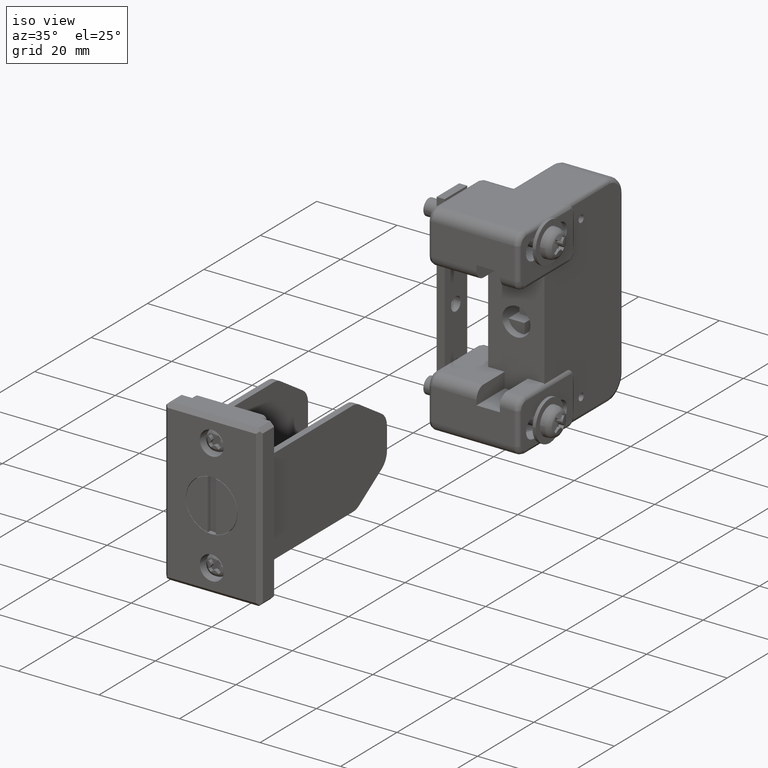
[diagram: clean part render]
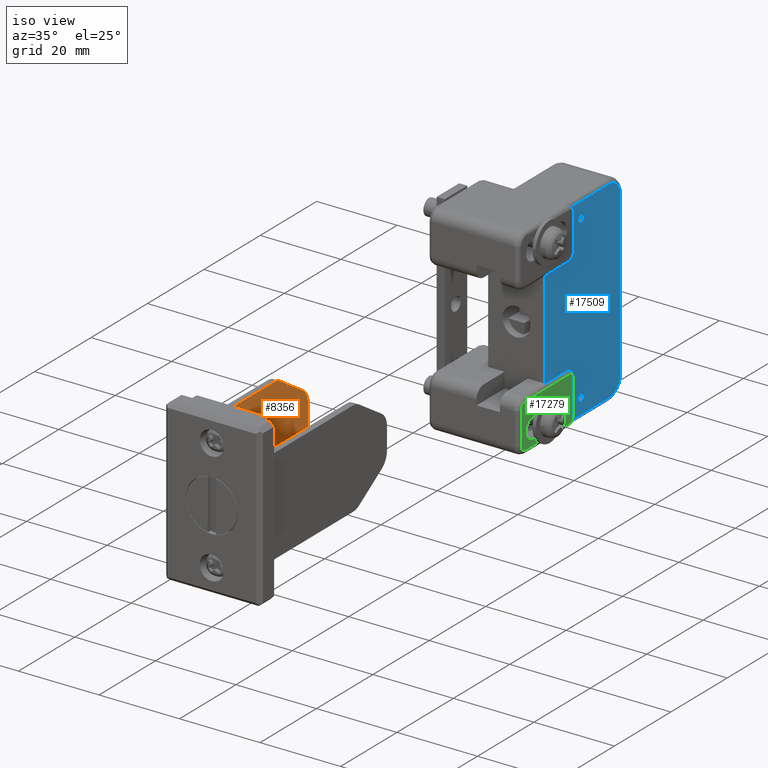
[diagram: same view with three faces highlighted in distinct colors, each labeled with its STEP entity id]
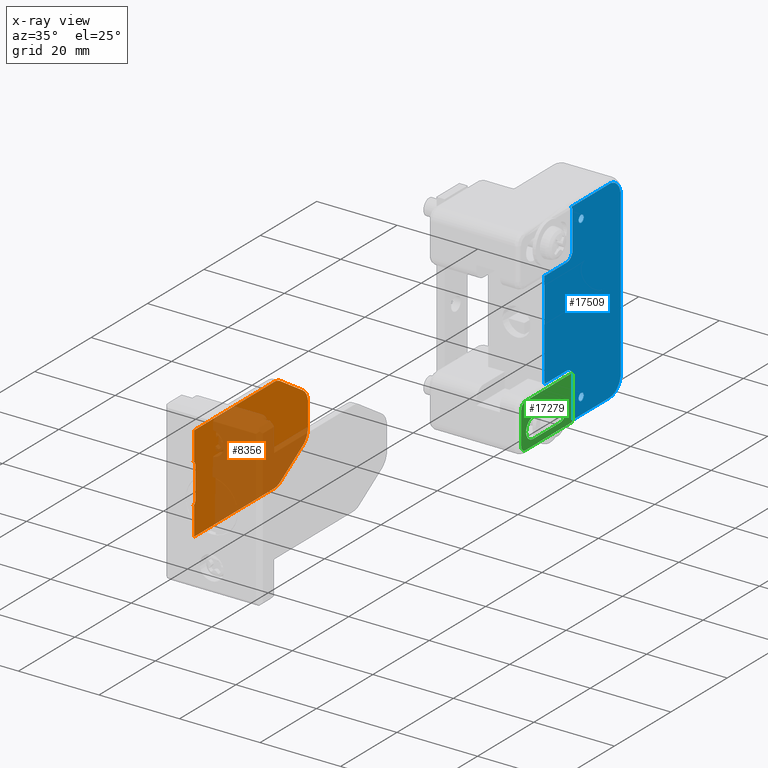
[diagram: x-ray of the same camera — body ghosted, the three highlighted faces saturated]
A machine part, iso view with three faces highlighted in distinct colors.
The next image is the same camera in x-ray (body ghosted, the three faces saturated) — at least one of them is partly hidden behind the body in this view.
Their STEP definitions:

[orange] entity #8356 — the highlighted face is a freeform B-spline surface patch.
#7216=CARTESIAN_POINT('',(6.0,9.000000000000119,-5.0));
#7217=VERTEX_POINT('',#7216);
#7450=CARTESIAN_POINT('',(6.600006000000001,9.000000000000108,-5.0));
#7451=VERTEX_POINT('',#7450);
#7452=CARTESIAN_POINT('',(6.600006000000001,9.000000000000108,-5.0));
#7453=CARTESIAN_POINT('',(6.0,9.000000000000119,-5.0));
#7454=QUASI_UNIFORM_CURVE('',1,(#7452,#7453),.UNSPECIFIED.,.F.,.U.);
#7455=EDGE_CURVE('',#7451,#7217,#7454,.T.);
#7620=CARTESIAN_POINT('',(5.999999947640121,9.000000000000119,5.0));
#7621=VERTEX_POINT('',#7620);
#7627=CARTESIAN_POINT('',(6.600006000000001,9.000000000000108,5.0));
#7628=VERTEX_POINT('',#7627);
#7629=CARTESIAN_POINT('',(6.600006000000001,9.000000000000108,5.0));
#7630=CARTESIAN_POINT('',(5.999999947640121,9.000000000000119,5.0));
#7631=QUASI_UNIFORM_CURVE('',1,(#7629,#7630),.UNSPECIFIED.,.F.,.U.);
#7632=EDGE_CURVE('',#7628,#7621,#7631,.T.);
#7686=CARTESIAN_POINT('',(7.0,9.0,-4.0));
#7687=VERTEX_POINT('',#7686);
#7693=CARTESIAN_POINT('',(7.0,9.0,4.0));
#7694=VERTEX_POINT('',#7693);
#7695=CARTESIAN_POINT('',(7.0,9.0,-4.0));
#7696=CARTESIAN_POINT('',(7.0,9.0,4.0));
#7697=QUASI_UNIFORM_CURVE('',1,(#7695,#7696),.UNSPECIFIED.,.F.,.U.);
#7698=EDGE_CURVE('',#7687,#7694,#7697,.T.);
#7878=CARTESIAN_POINT('',(6.600006000000001,9.000000000000108,11.950004000000000));
#7879=VERTEX_POINT('',#7878);
#8059=CARTESIAN_POINT('',(6.600006000000001,9.000000000000108,-11.949997000000000));
#8060=VERTEX_POINT('',#8059);
#8215=CARTESIAN_POINT('',(3.952050024490696,9.0,13.143808779271071));
#8216=CARTESIAN_POINT('',(3.952050024490696,9.0,-13.143802634001689));
#8217=CARTESIAN_POINT('',(49.047951022855131,9.0,13.143808779271071));
#8218=CARTESIAN_POINT('',(49.047951022855131,9.0,-13.143802634001689));
#8219=B_SPLINE_SURFACE_WITH_KNOTS('',1,1,((#8215,#8217),(#8216,#8218)),.UNSPECIFIED.,.F.,.F.,.U.,(2,2),(2,2),(0.0,26.287611413272771),(0.0,45.095900998364442),.UNSPECIFIED.);
#8220=CARTESIAN_POINT('',(6.0,9.000000000000119,-5.0));
#8221=CARTESIAN_POINT('',(6.999999999999999,9.000000000000002,-5.000000000000001));
#8222=CARTESIAN_POINT('',(7.0,9.0,-4.0));
#8230=(BOUNDED_CURVE()B_SPLINE_CURVE(2,(#8220,#8221,#8222),.UNSPECIFIED.,.F.,.U.)CURVE()GEOMETRIC_REPRESENTATION_ITEM()QUASI_UNIFORM_CURVE()RATIONAL_B_SPLINE_CURVE((1.0,0.707106781186548,1.0))REPRESENTATION_ITEM(''));
#8231=EDGE_CURVE('',#7217,#7687,#8230,.T.);
#8232=ORIENTED_EDGE('',*,*,#8231,.F.);
#8233=ORIENTED_EDGE('',*,*,#7455,.F.);
#8234=CARTESIAN_POINT('',(6.600006000000001,9.000000000000108,-11.949997000000000));
#8235=CARTESIAN_POINT('',(6.600006000000001,9.000000000000108,-5.0));
#8236=QUASI_UNIFORM_CURVE('',1,(#8234,#8235),.UNSPECIFIED.,.F.,.U.);
#8237=EDGE_CURVE('',#8060,#7451,#8236,.T.);
#8238=ORIENTED_EDGE('',*,*,#8237,.F.);
#8239=CARTESIAN_POINT('',(35.0,9.0,-11.949997000000000));
#8240=VERTEX_POINT('',#8239);
#8241=CARTESIAN_POINT('',(6.600006000000001,9.000000000000108,-11.949997000000000));
#8242=CARTESIAN_POINT('',(35.0,9.0,-11.949997000000000));
#8243=QUASI_UNIFORM_CURVE('',1,(#8241,#8242),.UNSPECIFIED.,.F.,.U.);
#8244=EDGE_CURVE('',#8060,#8240,#8243,.T.);
#8245=ORIENTED_EDGE('',*,*,#8244,.T.);
#8246=CARTESIAN_POINT('',(37.160837709802848,9.0,-11.316119544351460));
#8247=VERTEX_POINT('',#8246);
#8248=CARTESIAN_POINT('',(37.160837709802848,9.0,-11.316119544351460));
#8249=CARTESIAN_POINT('',(36.173392201987291,9.0,-11.949997000000002));
#8250=CARTESIAN_POINT('',(35.0,9.0,-11.949997000000000));
#8258=(BOUNDED_CURVE()B_SPLINE_CURVE(2,(#8248,#8249,#8250),.UNSPECIFIED.,.F.,.U.)CURVE()GEOMETRIC_REPRESENTATION_ITEM()QUASI_UNIFORM_CURVE()RATIONAL_B_SPLINE_CURVE((1.0,0.959565167283471,1.0))REPRESENTATION_ITEM(''));
#8259=EDGE_CURVE('',#8247,#8240,#8258,.T.);
#8260=ORIENTED_EDGE('',*,*,#8259,.F.);
#8261=CARTESIAN_POINT('',(45.160837414647702,9.0,-6.180626645932421));
#8262=VERTEX_POINT('',#8261);
#8263=CARTESIAN_POINT('',(45.160837414647702,9.0,-6.180626645932421));
#8264=CARTESIAN_POINT('',(37.160837709802848,9.0,-11.316119544351460));
#8265=QUASI_UNIFORM_CURVE('',1,(#8263,#8264),.UNSPECIFIED.,.F.,.U.);
#8266=EDGE_CURVE('',#8262,#8247,#8265,.T.);
#8267=ORIENTED_EDGE('',*,*,#8266,.F.);
#8268=CARTESIAN_POINT('',(47.0,9.0,-2.814503999999940));
#8269=VERTEX_POINT('',#8268);
#8270=CARTESIAN_POINT('',(47.0,9.0,-2.814504000000000));
#8271=CARTESIAN_POINT('',(46.999999999999993,9.0,-5.000000820889485));
#8272=CARTESIAN_POINT('',(45.160837414647673,9.0,-6.180626645932374));
#8280=(BOUNDED_CURVE()B_SPLINE_CURVE(2,(#8270,#8271,#8272),.UNSPECIFIED.,.F.,.U.)CURVE()GEOMETRIC_REPRESENTATION_ITEM()QUASI_UNIFORM_CURVE()RATIONAL_B_SPLINE_CURVE((1.0,0.877556081872241,1.0))REPRESENTATION_ITEM(''));
#8281=EDGE_CURVE('',#8269,#8262,#8280,.T.);
#8282=ORIENTED_EDGE('',*,*,#8281,.F.);
#8283=CARTESIAN_POINT('',(47.0,9.0,2.814504000000050));
#8284=VERTEX_POINT('',#8283);
#8285=CARTESIAN_POINT('',(47.0,9.0,-2.814503999999940));
#8286=CARTESIAN_POINT('',(47.0,9.0,2.814504000000050));
#8287=QUASI_UNIFORM_CURVE('',1,(#8285,#8286),.UNSPECIFIED.,.F.,.U.);
#8288=EDGE_CURVE('',#8269,#8284,#8287,.T.);
#8289=ORIENTED_EDGE('',*,*,#8288,.T.);
#8290=CARTESIAN_POINT('',(45.160839000000102,9.0,6.180626000000000));
#8291=VERTEX_POINT('',#8290);
#8292=CARTESIAN_POINT('',(45.160839000000102,9.0,6.180626000000000));
#8293=CARTESIAN_POINT('',(47.000000000000007,9.000000000000002,4.999999728141244));
#8294=CARTESIAN_POINT('',(47.0,9.0,2.814504000000000));
#8302=(BOUNDED_CURVE()B_SPLINE_CURVE(2,(#8292,#8293,#8294),.UNSPECIFIED.,.F.,.U.)CURVE()GEOMETRIC_REPRESENTATION_ITEM()QUASI_UNIFORM_CURVE()RATIONAL_B_SPLINE_CURVE((1.0,0.877556182745237,1.0))REPRESENTATION_ITEM(''));
#8303=EDGE_CURVE('',#8291,#8284,#8302,.T.);
#8304=ORIENTED_EDGE('',*,*,#8303,.F.);
#8305=CARTESIAN_POINT('',(37.160838830995147,9.0,11.316125736726621));
#8306=VERTEX_POINT('',#8305);
#8307=CARTESIAN_POINT('',(37.160838830995147,9.0,11.316125736726621));
#8308=CARTESIAN_POINT('',(45.160839000000102,9.0,6.180626000000000));
#8309=QUASI_UNIFORM_CURVE('',1,(#8307,#8308),.UNSPECIFIED.,.F.,.U.);
#8310=EDGE_CURVE('',#8306,#8291,#8309,.T.);
#8311=ORIENTED_EDGE('',*,*,#8310,.F.);
#8312=CARTESIAN_POINT('',(35.0,9.0,11.950004000000019));
#8313=VERTEX_POINT('',#8312);
#8314=CARTESIAN_POINT('',(35.0,9.0,11.950004000000000));
#8315=CARTESIAN_POINT('',(36.173392951257625,9.0,11.950004000000003));
#8316=CARTESIAN_POINT('',(37.160838830995147,9.0,11.316125736726629));
#8324=(BOUNDED_CURVE()B_SPLINE_CURVE(2,(#8314,#8315,#8316),.UNSPECIFIED.,.F.,.U.)CURVE()GEOMETRIC_REPRESENTATION_ITEM()QUASI_UNIFORM_CURVE()RATIONAL_B_SPLINE_CURVE((1.0,0.959565118733913,1.0))REPRESENTATION_ITEM(''));
#8325=EDGE_CURVE('',#8313,#8306,#8324,.T.);
#8326=ORIENTED_EDGE('',*,*,#8325,.F.);
#8327=CARTESIAN_POINT('',(6.600006000000001,9.000000000000108,11.950004000000000));
#8328=CARTESIAN_POINT('',(35.0,9.0,11.950004000000019));
#8329=QUASI_UNIFORM_CURVE('',1,(#8327,#8328),.UNSPECIFIED.,.F.,.U.);
#8330=EDGE_CURVE('',#7879,#8313,#8329,.T.);
#8331=ORIENTED_EDGE('',*,*,#8330,.F.);
#8332=CARTESIAN_POINT('',(6.600006000000001,9.000000000000108,5.0));
#8333=CARTESIAN_POINT('',(6.600006000000001,9.000000000000108,11.950004000000000));
#8334=QUASI_UNIFORM_CURVE('',1,(#8332,#8333),.UNSPECIFIED.,.F.,.U.);
#8335=EDGE_CURVE('',#7628,#7879,#8334,.T.);
#8336=ORIENTED_EDGE('',*,*,#8335,.F.);
#8337=ORIENTED_EDGE('',*,*,#7632,.T.);
#8338=CARTESIAN_POINT('',(7.0,9.0,4.0));
#8339=CARTESIAN_POINT('',(7.0,9.000000000000002,4.414213577708948));
#8340=CARTESIAN_POINT('',(6.707106762674535,9.0,4.707106799698560));
#8341=CARTESIAN_POINT('',(6.414213525349068,9.000000000000002,5.000000021688171));
#8342=CARTESIAN_POINT('',(5.999999947640121,9.000000000000119,5.0));
#8350=(BOUNDED_CURVE()B_SPLINE_CURVE(2,(#8338,#8339,#8340,#8341,#8342),.UNSPECIFIED.,.F.,.U.)B_SPLINE_CURVE_WITH_KNOTS((3,2,3),(0.0,0.500000000000000,1.0),.UNSPECIFIED.)CURVE()GEOMETRIC_REPRESENTATION_ITEM()RATIONAL_B_SPLINE_CURVE((1.0,0.923879527501972,1.0,0.923879527501972,1.0))REPRESENTATION_ITEM(''));
#8351=EDGE_CURVE('',#7694,#7621,#8350,.T.);
#8352=ORIENTED_EDGE('',*,*,#8351,.F.);
#8353=ORIENTED_EDGE('',*,*,#7698,.F.);
#8354=EDGE_LOOP('',(#8232,#8233,#8238,#8245,#8260,#8267,#8282,#8289,#8304,#8311,#8326,#8331,#8336,#8337,#8352,#8353));
#8355=FACE_OUTER_BOUND('',#8354,.T.);
#8356=ADVANCED_FACE('',(#8355),#8219,.T.);

[blue] entity #17509 — the highlighted face is a freeform B-spline surface patch.
#9848=CARTESIAN_POINT('',(120.139635274685400,-7.0,-20.0));
#9849=VERTEX_POINT('',#9848);
#9850=CARTESIAN_POINT('',(120.355269905647600,-7.0,-20.584503243499721));
#9851=VERTEX_POINT('',#9850);
#9852=CARTESIAN_POINT('',(120.139635274685400,-7.0,-20.0));
#9853=CARTESIAN_POINT('',(120.139635274685360,-7.0,-20.332027529402655));
#9854=CARTESIAN_POINT('',(120.355269905647570,-7.0,-20.584503243499721));
#9862=(BOUNDED_CURVE()B_SPLINE_CURVE(2,(#9852,#9853,#9854),.UNSPECIFIED.,.F.,.U.)B_SPLINE_CURVE_WITH_KNOTS((3,3),(0.0,0.113143161350500),.UNSPECIFIED.)CURVE()GEOMETRIC_REPRESENTATION_ITEM()RATIONAL_B_SPLINE_CURVE((1.0,0.867444541141288,0.854871031638903))REPRESENTATION_ITEM(''));
#9863=EDGE_CURVE('',#9849,#9851,#9862,.T.);
#9906=CARTESIAN_POINT('',(121.624137489987310,-7.0,-20.684366247199090));
#9907=VERTEX_POINT('',#9906);
#9913=CARTESIAN_POINT('',(121.939635274685400,-7.0,-20.0));
#9914=VERTEX_POINT('',#9913);
#9915=CARTESIAN_POINT('',(121.624137489987310,-7.0,-20.684366247199083));
#9916=CARTESIAN_POINT('',(121.939635274685370,-7.0,-20.414906502752743));
#9917=CARTESIAN_POINT('',(121.939635274685400,-7.0,-20.0));
#9925=(BOUNDED_CURVE()B_SPLINE_CURVE(2,(#9915,#9916,#9917),.UNSPECIFIED.,.F.,.U.)B_SPLINE_CURVE_WITH_KNOTS((3,3),(0.363142934304006,0.500000000000000),.UNSPECIFIED.)CURVE()GEOMETRIC_REPRESENTATION_ITEM()RATIONAL_B_SPLINE_CURVE((0.854871082102379,0.839661974043744,1.0))REPRESENTATION_ITEM(''));
#9926=EDGE_CURVE('',#9907,#9914,#9925,.T.);
#9928=CARTESIAN_POINT('',(121.939635274685400,-7.0,-20.0));
#9929=CARTESIAN_POINT('',(121.939635274685390,-6.999999999999999,-19.099999999999991));
#9930=CARTESIAN_POINT('',(121.039635274685390,-7.0,-19.100000000000001));
#9931=CARTESIAN_POINT('',(120.139635274685380,-6.999999999999999,-19.099999999999991));
#9932=CARTESIAN_POINT('',(120.139635274685400,-7.0,-20.0));
#9940=(BOUNDED_CURVE()B_SPLINE_CURVE(2,(#9928,#9929,#9930,#9931,#9932),.UNSPECIFIED.,.F.,.U.)B_SPLINE_CURVE_WITH_KNOTS((3,2,3),(0.500000000000000,0.750000000000000,1.0),.UNSPECIFIED.)CURVE()GEOMETRIC_REPRESENTATION_ITEM()RATIONAL_B_SPLINE_CURVE((1.0,0.707106781186547,1.0,0.707106781186547,1.0))REPRESENTATION_ITEM(''));
#9941=EDGE_CURVE('',#9914,#9849,#9940,.T.);
#9964=CARTESIAN_POINT('',(120.355269905647550,-7.0,-20.584503243499721));
#9965=CARTESIAN_POINT('',(120.624729591704820,-7.0,-20.900000000000009));
#9966=CARTESIAN_POINT('',(121.039635274685390,-7.0,-20.899999999999999));
#9967=CARTESIAN_POINT('',(121.371662035986290,-7.000000000000001,-20.900000000000006));
#9968=CARTESIAN_POINT('',(121.624137489987310,-7.0,-20.684366247199083));
#9976=(BOUNDED_CURVE()B_SPLINE_CURVE(2,(#9964,#9965,#9966,#9967,#9968),.UNSPECIFIED.,.F.,.U.)B_SPLINE_CURVE_WITH_KNOTS((3,2,3),(0.113143161350500,0.250000000000000,0.363142934304006),.UNSPECIFIED.)CURVE()GEOMETRIC_REPRESENTATION_ITEM()RATIONAL_B_SPLINE_CURVE((0.854871031638904,0.839662240045259,1.0,0.867444807142803,0.854871082102379))REPRESENTATION_ITEM(''));
#9977=EDGE_CURVE('',#9851,#9907,#9976,.T.);
#10034=CARTESIAN_POINT('',(120.139635274685400,-7.0,20.0));
#10035=VERTEX_POINT('',#10034);
#10036=CARTESIAN_POINT('',(120.355269905647500,-7.0,19.415496756500279));
#10037=VERTEX_POINT('',#10036);
#10038=CARTESIAN_POINT('',(120.139635274685400,-7.0,20.0));
#10039=CARTESIAN_POINT('',(120.139635274685400,-6.999999999999999,19.667972470597345));
#10040=CARTESIAN_POINT('',(120.355269905647570,-7.0,19.415496756500282));
#10048=(BOUNDED_CURVE()B_SPLINE_CURVE(2,(#10038,#10039,#10040),.UNSPECIFIED.,.F.,.U.)B_SPLINE_CURVE_WITH_KNOTS((3,3),(0.0,0.113143161350501),.UNSPECIFIED.)CURVE()GEOMETRIC_REPRESENTATION_ITEM()RATIONAL_B_SPLINE_CURVE((1.0,0.867444541141288,0.854871031638903))REPRESENTATION_ITEM(''));
#10049=EDGE_CURVE('',#10035,#10037,#10048,.T.);
#10092=CARTESIAN_POINT('',(121.624137489987310,-7.0,19.315633752800910));
#10093=VERTEX_POINT('',#10092);
#10099=CARTESIAN_POINT('',(121.939635274685400,-7.0,20.0));
#10100=VERTEX_POINT('',#10099);
#10101=CARTESIAN_POINT('',(121.624137489987310,-7.0,19.315633752800913));
#10102=CARTESIAN_POINT('',(121.939635274685390,-6.999999999999999,19.585093497247261));
#10103=CARTESIAN_POINT('',(121.939635274685400,-7.0,20.0));
#10111=(BOUNDED_CURVE()B_SPLINE_CURVE(2,(#10101,#10102,#10103),.UNSPECIFIED.,.F.,.U.)B_SPLINE_CURVE_WITH_KNOTS((3,3),(0.363142934304006,0.500000000000000),.UNSPECIFIED.)CURVE()GEOMETRIC_REPRESENTATION_ITEM()RATIONAL_B_SPLINE_CURVE((0.854871082102379,0.839661974043744,1.0))REPRESENTATION_ITEM(''));
#10112=EDGE_CURVE('',#10093,#10100,#10111,.T.);
#10114=CARTESIAN_POINT('',(121.939635274685400,-7.0,20.0));
#10115=CARTESIAN_POINT('',(121.939635274685390,-6.999999999999999,20.899999999999999));
#10116=CARTESIAN_POINT('',(121.039635274685390,-7.0,20.899999999999999));
#10117=CARTESIAN_POINT('',(120.139635274685380,-6.999999999999999,20.899999999999999));
#10118=CARTESIAN_POINT('',(120.139635274685400,-7.0,20.0));
#10126=(BOUNDED_CURVE()B_SPLINE_CURVE(2,(#10114,#10115,#10116,#10117,#10118),.UNSPECIFIED.,.F.,.U.)B_SPLINE_CURVE_WITH_KNOTS((3,2,3),(0.500000000000000,0.750000000000000,1.0),.UNSPECIFIED.)CURVE()GEOMETRIC_REPRESENTATION_ITEM()RATIONAL_B_SPLINE_CURVE((1.0,0.707106781186547,1.0,0.707106781186547,1.0))REPRESENTATION_ITEM(''));
#10127=EDGE_CURVE('',#10100,#10035,#10126,.T.);
#10150=CARTESIAN_POINT('',(120.355269905647570,-7.0,19.415496756500282));
#10151=CARTESIAN_POINT('',(120.624729591704860,-7.0,19.099999999999991));
#10152=CARTESIAN_POINT('',(121.039635274685390,-7.0,19.100000000000001));
#10153=CARTESIAN_POINT('',(121.371662035986360,-7.0,19.099999999999994));
#10154=CARTESIAN_POINT('',(121.624137489987310,-7.0,19.315633752800913));
#10162=(BOUNDED_CURVE()B_SPLINE_CURVE(2,(#10150,#10151,#10152,#10153,#10154),.UNSPECIFIED.,.F.,.U.)B_SPLINE_CURVE_WITH_KNOTS((3,2,3),(0.113143161350501,0.250000000000000,0.363142934304006),.UNSPECIFIED.)CURVE()GEOMETRIC_REPRESENTATION_ITEM()RATIONAL_B_SPLINE_CURVE((0.854871031638903,0.839662240045259,1.0,0.867444807142803,0.854871082102379))REPRESENTATION_ITEM(''));
#10163=EDGE_CURVE('',#10037,#10093,#10162,.T.);
#13112=CARTESIAN_POINT('',(116.052920667350410,-7.0,-12.133974596215580));
#13113=VERTEX_POINT('',#13112);
#13114=CARTESIAN_POINT('',(117.193229844100800,-7.0,-12.625000000000000));
#13115=VERTEX_POINT('',#13114);
#13116=CARTESIAN_POINT('',(116.052920667350410,-7.0,-12.133974596215561));
#13117=CARTESIAN_POINT('',(116.159780451104500,-6.999999999999999,-12.133974596215550));
#13118=CARTESIAN_POINT('',(116.264284901947800,-7.000000000000029,-12.147845795861979));
#13119=CARTESIAN_POINT('',(116.418312797132800,-7.000000000000032,-12.184723133377060));
#13120=CARTESIAN_POINT('',(116.469384468029010,-7.000000000000030,-12.199829763836069));
#13121=CARTESIAN_POINT('',(116.569741482453490,-7.000000000000032,-12.234910024551850));
#13122=CARTESIAN_POINT('',(116.618694849845800,-7.000000000000030,-12.254742389266680));
#13123=CARTESIAN_POINT('',(116.762294343772500,-7.000000000000030,-12.320340075469170));
#13124=CARTESIAN_POINT('',(116.853696293463400,-7.000000000000030,-12.372175245883129));
#13125=CARTESIAN_POINT('',(116.985392016506790,-7.000000000000030,-12.460044865583461));
#13126=CARTESIAN_POINT('',(117.028468943773900,-7.000000000000029,-12.491096211484400));
#13127=CARTESIAN_POINT('',(117.112488620646600,-7.000000000000030,-12.556031471767600));
#13128=CARTESIAN_POINT('',(117.153389151067200,-6.999999999999997,-12.589863811390900));
#13129=CARTESIAN_POINT('',(117.193229844100800,-7.0,-12.625000000000000));
#13130=B_SPLINE_CURVE_WITH_KNOTS('',3,(#13116,#13117,#13118,#13119,#13120,#13121,#13122,#13123,#13124,#13125,#13126,#13127,#13128,#13129),.UNSPECIFIED.,.F.,.U.,(4,2,2,2,2,2,4),(0.0,0.250000000000040,0.375000000000043,0.500000000000046,0.750000000000023,0.875000000000012,1.0),.UNSPECIFIED.);
#13131=EDGE_CURVE('',#13113,#13115,#13130,.T.);
#13187=CARTESIAN_POINT('',(117.905660678469800,-7.0,-13.692582023579501));
#13188=VERTEX_POINT('',#13187);
#13212=CARTESIAN_POINT('',(117.905660678469800,-7.0,-13.692582023579510));
#13213=CARTESIAN_POINT('',(117.691216297436630,-7.0,-13.064182770601905));
#13214=CARTESIAN_POINT('',(117.193229844100800,-7.0,-12.625000000000020));
#13222=(BOUNDED_CURVE()B_SPLINE_CURVE(2,(#13212,#13213,#13214),.UNSPECIFIED.,.F.,.U.)CURVE()GEOMETRIC_REPRESENTATION_ITEM()QUASI_UNIFORM_CURVE()RATIONAL_B_SPLINE_CURVE((1.0,0.966492854172657,1.0))REPRESENTATION_ITEM(''));
#13223=EDGE_CURVE('',#13188,#13115,#13222,.T.);
#13258=CARTESIAN_POINT('',(117.905660678469800,-7.0,-23.307414976420500));
#13259=VERTEX_POINT('',#13258);
#13283=CARTESIAN_POINT('',(117.905660678469800,-7.0,-23.307414976420500));
#13284=CARTESIAN_POINT('',(117.905660678469800,-7.0,-13.692582023579501));
#13285=QUASI_UNIFORM_CURVE('',1,(#13283,#13284),.UNSPECIFIED.,.F.,.U.);
#13286=EDGE_CURVE('',#13259,#13188,#13285,.T.);
#13314=CARTESIAN_POINT('',(117.539635274685390,-7.0,-23.999997000000000));
#13315=VERTEX_POINT('',#13314);
#13331=CARTESIAN_POINT('',(117.539635274685390,-7.0,-23.999997000000000));
#13332=CARTESIAN_POINT('',(117.777580073281640,-7.0,-23.682737268538432));
#13333=CARTESIAN_POINT('',(117.905660678469800,-7.0,-23.307414976420489));
#13341=(BOUNDED_CURVE()B_SPLINE_CURVE(2,(#13331,#13332,#13333),.UNSPECIFIED.,.F.,.U.)CURVE()GEOMETRIC_REPRESENTATION_ITEM()QUASI_UNIFORM_CURVE()RATIONAL_B_SPLINE_CURVE((1.0,0.987650860261844,1.0))REPRESENTATION_ITEM(''));
#13342=EDGE_CURVE('',#13315,#13259,#13341,.T.);
#13583=CARTESIAN_POINT('',(117.905660678469800,-7.0,23.307417976420499));
#13584=VERTEX_POINT('',#13583);
#13585=CARTESIAN_POINT('',(117.539635274685390,-7.0,24.0));
#13586=VERTEX_POINT('',#13585);
#13587=CARTESIAN_POINT('',(117.905660678469800,-7.0,23.307417976420489));
#13588=CARTESIAN_POINT('',(117.777580073281570,-7.0,23.682740268538424));
#13589=CARTESIAN_POINT('',(117.539635274685390,-7.0,24.0));
#13597=(BOUNDED_CURVE()B_SPLINE_CURVE(2,(#13587,#13588,#13589),.UNSPECIFIED.,.F.,.U.)CURVE()GEOMETRIC_REPRESENTATION_ITEM()QUASI_UNIFORM_CURVE()RATIONAL_B_SPLINE_CURVE((1.0,0.987650860261844,1.0))REPRESENTATION_ITEM(''));
#13598=EDGE_CURVE('',#13584,#13586,#13597,.T.);
#13671=CARTESIAN_POINT('',(117.905660678469800,-7.0,13.692582023579480));
#13672=VERTEX_POINT('',#13671);
#13696=CARTESIAN_POINT('',(117.905660678469800,-7.0,13.692582023579480));
#13697=CARTESIAN_POINT('',(117.905660678469800,-7.0,23.307417976420499));
#13698=QUASI_UNIFORM_CURVE('',1,(#13696,#13697),.UNSPECIFIED.,.F.,.U.);
#13699=EDGE_CURVE('',#13672,#13584,#13698,.T.);
#13729=CARTESIAN_POINT('',(117.193229844101000,-7.0,12.625000000000000));
#13730=VERTEX_POINT('',#13729);
#13744=CARTESIAN_POINT('',(117.193229844100900,-7.0,12.625000000000121));
#13745=CARTESIAN_POINT('',(117.691216297436610,-7.000000000000001,13.064182770601974));
#13746=CARTESIAN_POINT('',(117.905660678469800,-7.0,13.692582023579490));
#13754=(BOUNDED_CURVE()B_SPLINE_CURVE(2,(#13744,#13745,#13746),.UNSPECIFIED.,.F.,.U.)CURVE()GEOMETRIC_REPRESENTATION_ITEM()QUASI_UNIFORM_CURVE()RATIONAL_B_SPLINE_CURVE((1.0,0.966492854172666,1.0))REPRESENTATION_ITEM(''));
#13755=EDGE_CURVE('',#13730,#13672,#13754,.T.);
#13832=CARTESIAN_POINT('',(116.052920667350610,-7.0,12.133974596215580));
#13833=VERTEX_POINT('',#13832);
#13849=CARTESIAN_POINT('',(117.193229844101000,-7.0,12.625000000000000));
#13850=CARTESIAN_POINT('',(117.113389942513900,-6.999999999999999,12.554587825233661));
#13851=CARTESIAN_POINT('',(117.030013653511110,-7.000000000000031,12.489902814901241));
#13852=CARTESIAN_POINT('',(116.855415844453700,-7.000000000000030,12.373238112686851));
#13853=CARTESIAN_POINT('',(116.764167919815700,-7.000000000000028,12.321301182914780));
#13854=CARTESIAN_POINT('',(116.619963641792100,-7.000000000000030,12.255270564521870));
#13855=CARTESIAN_POINT('',(116.570404918413600,-7.000000000000032,12.235160994229711));
#13856=CARTESIAN_POINT('',(116.469763743147990,-7.000000000000030,12.199943475142859));
#13857=CARTESIAN_POINT('',(116.418953928202900,-7.000000000000032,12.184901093928710));
#13858=CARTESIAN_POINT('',(116.264963995140500,-7.000000000000030,12.147959926558091));
#13859=CARTESIAN_POINT('',(116.160275339223400,-7.0,12.133974596215589));
#13860=CARTESIAN_POINT('',(116.052920667350610,-7.0,12.133974596215580));
#13861=B_SPLINE_CURVE_WITH_KNOTS('',3,(#13849,#13850,#13851,#13852,#13853,#13854,#13855,#13856,#13857,#13858,#13859,#13860),.UNSPECIFIED.,.F.,.U.,(4,2,2,2,2,4),(0.0,0.249999999999992,0.499999999999984,0.624999999999980,0.749999999999976,1.0),.UNSPECIFIED.);
#13862=EDGE_CURVE('',#13730,#13833,#13861,.T.);
#13890=CARTESIAN_POINT('',(108.039635274685390,-7.0,-12.133974596215580));
#13891=VERTEX_POINT('',#13890);
#13892=CARTESIAN_POINT('',(108.039635274685390,-7.0,-12.133974596215580));
#13893=CARTESIAN_POINT('',(116.052920667350410,-7.0,-12.133974596215580));
#13894=QUASI_UNIFORM_CURVE('',1,(#13892,#13893),.UNSPECIFIED.,.F.,.U.);
#13895=EDGE_CURVE('',#13891,#13113,#13894,.T.);
#14373=CARTESIAN_POINT('',(108.039635274685390,-7.0,12.133974596215580));
#14374=VERTEX_POINT('',#14373);
#14375=CARTESIAN_POINT('',(116.052920667350610,-7.0,12.133974596215580));
#14376=CARTESIAN_POINT('',(108.039635274685390,-7.0,12.133974596215580));
#14377=QUASI_UNIFORM_CURVE('',1,(#14375,#14376),.UNSPECIFIED.,.F.,.U.);
#14378=EDGE_CURVE('',#13833,#14374,#14377,.T.);
#14424=CARTESIAN_POINT('',(131.039635274685390,-7.0,24.0));
#14425=VERTEX_POINT('',#14424);
#14477=CARTESIAN_POINT('',(131.039635274685390,-7.0,24.0));
#14478=CARTESIAN_POINT('',(117.539635274685390,-7.0,24.0));
#14479=QUASI_UNIFORM_CURVE('',1,(#14477,#14478),.UNSPECIFIED.,.F.,.U.);
#14480=EDGE_CURVE('',#14425,#13586,#14479,.T.);
#14502=CARTESIAN_POINT('',(135.039635274685390,-7.0,20.0));
#14503=VERTEX_POINT('',#14502);
#14533=CARTESIAN_POINT('',(135.039635274685390,-7.0,20.0));
#14534=CARTESIAN_POINT('',(135.039635274685390,-6.999999999999999,23.999999999999996));
#14535=CARTESIAN_POINT('',(131.039635274685390,-7.0,24.0));
#14543=(BOUNDED_CURVE()B_SPLINE_CURVE(2,(#14533,#14534,#14535),.UNSPECIFIED.,.F.,.U.)CURVE()GEOMETRIC_REPRESENTATION_ITEM()QUASI_UNIFORM_CURVE()RATIONAL_B_SPLINE_CURVE((1.0,0.707106781186548,1.0))REPRESENTATION_ITEM(''));
#14544=EDGE_CURVE('',#14503,#14425,#14543,.T.);
#14563=CARTESIAN_POINT('',(135.039635274685390,-7.0,-19.999997000000000));
#14564=VERTEX_POINT('',#14563);
#14586=CARTESIAN_POINT('',(135.039635274685390,-7.0,-19.999997000000000));
#14587=CARTESIAN_POINT('',(135.039635274685390,-7.0,20.0));
#14588=QUASI_UNIFORM_CURVE('',1,(#14586,#14587),.UNSPECIFIED.,.F.,.U.);
#14589=EDGE_CURVE('',#14564,#14503,#14588,.T.);
#14611=CARTESIAN_POINT('',(131.039635274685390,-7.0,-23.999997000000000));
#14612=VERTEX_POINT('',#14611);
#14642=CARTESIAN_POINT('',(131.039635274685390,-7.0,-23.999997000000000));
#14643=CARTESIAN_POINT('',(135.039635274685390,-6.999999999999999,-23.999997000000004));
#14644=CARTESIAN_POINT('',(135.039635274685390,-7.0,-19.999997000000000));
#14652=(BOUNDED_CURVE()B_SPLINE_CURVE(2,(#14642,#14643,#14644),.UNSPECIFIED.,.F.,.U.)CURVE()GEOMETRIC_REPRESENTATION_ITEM()QUASI_UNIFORM_CURVE()RATIONAL_B_SPLINE_CURVE((1.0,0.707106781186548,1.0))REPRESENTATION_ITEM(''));
#14653=EDGE_CURVE('',#14612,#14564,#14652,.T.);
#14709=CARTESIAN_POINT('',(117.539635274685390,-7.0,-23.999997000000000));
#14710=CARTESIAN_POINT('',(131.039635274685390,-7.0,-23.999997000000000));
#14711=QUASI_UNIFORM_CURVE('',1,(#14709,#14710),.UNSPECIFIED.,.F.,.U.);
#14712=EDGE_CURVE('',#13315,#14612,#14711,.T.);
#17309=CARTESIAN_POINT('',(108.039635274685390,-7.0,12.133974596215580));
#17310=CARTESIAN_POINT('',(108.039635274685390,-7.0,-12.133974596215580));
#17311=QUASI_UNIFORM_CURVE('',1,(#17309,#17310),.UNSPECIFIED.,.F.,.U.);
#17312=EDGE_CURVE('',#14374,#13891,#17311,.T.);
#17474=CARTESIAN_POINT('',(136.388292826054600,-7.0,-26.397595855937439));
#17475=CARTESIAN_POINT('',(106.690984241084100,-7.0,-26.397595855937439));
#17476=CARTESIAN_POINT('',(136.388292826054600,-7.0,26.397601001704519));
#17477=CARTESIAN_POINT('',(106.690984241084100,-7.0,26.397601001704519));
#17478=B_SPLINE_SURFACE_WITH_KNOTS('',1,1,((#17474,#17476),(#17475,#17477)),.UNSPECIFIED.,.F.,.F.,.U.,(2,2),(2,2),(0.0,29.697308584970528),(0.0,52.795196857641962),.UNSPECIFIED.);
#17479=ORIENTED_EDGE('',*,*,#14544,.T.);
#17480=ORIENTED_EDGE('',*,*,#14480,.T.);
#17481=ORIENTED_EDGE('',*,*,#13598,.F.);
#17482=ORIENTED_EDGE('',*,*,#13699,.F.);
#17483=ORIENTED_EDGE('',*,*,#13755,.F.);
#17484=ORIENTED_EDGE('',*,*,#13862,.T.);
#17485=ORIENTED_EDGE('',*,*,#14378,.T.);
#17486=ORIENTED_EDGE('',*,*,#17312,.T.);
#17487=ORIENTED_EDGE('',*,*,#13895,.T.);
#17488=ORIENTED_EDGE('',*,*,#13131,.T.);
#17489=ORIENTED_EDGE('',*,*,#13223,.F.);
#17490=ORIENTED_EDGE('',*,*,#13286,.F.);
#17491=ORIENTED_EDGE('',*,*,#13342,.F.);
#17492=ORIENTED_EDGE('',*,*,#14712,.T.);
#17493=ORIENTED_EDGE('',*,*,#14653,.T.);
#17494=ORIENTED_EDGE('',*,*,#14589,.T.);
#17495=EDGE_LOOP('',(#17479,#17480,#17481,#17482,#17483,#17484,#17485,#17486,#17487,#17488,#17489,#17490,#17491,#17492,#17493,#17494));
#17496=FACE_OUTER_BOUND('',#17495,.T.);
#17497=ORIENTED_EDGE('',*,*,#10127,.F.);
#17498=ORIENTED_EDGE('',*,*,#10112,.F.);
#17499=ORIENTED_EDGE('',*,*,#10163,.F.);
#17500=ORIENTED_EDGE('',*,*,#10049,.F.);
#17501=EDGE_LOOP('',(#17497,#17498,#17499,#17500));
#17502=FACE_BOUND('',#17501,.T.);
#17503=ORIENTED_EDGE('',*,*,#9941,.F.);
#17504=ORIENTED_EDGE('',*,*,#9926,.F.);
#17505=ORIENTED_EDGE('',*,*,#9977,.F.);
#17506=ORIENTED_EDGE('',*,*,#9863,.F.);
#17507=EDGE_LOOP('',(#17503,#17504,#17505,#17506));
#17508=FACE_BOUND('',#17507,.T.);
#17509=ADVANCED_FACE('',(#17496,#17502,#17508),#17478,.F.);

[green] entity #17279 — the highlighted face is a freeform B-spline surface patch.
#13133=CARTESIAN_POINT('',(116.862510930217790,-7.500000000000000,-13.0));
#13134=VERTEX_POINT('',#13133);
#13185=CARTESIAN_POINT('',(117.405660678469800,-7.500000000000000,-13.780313128901639));
#13186=VERTEX_POINT('',#13185);
#13226=CARTESIAN_POINT('',(117.405660678469800,-7.500000000000000,-13.780313128901650));
#13227=CARTESIAN_POINT('',(117.229555774689460,-7.500000000000000,-13.323703126160188));
#13228=CARTESIAN_POINT('',(116.862510930217790,-7.500000000000000,-13.000000000000050));
#13236=(BOUNDED_CURVE()B_SPLINE_CURVE(2,(#13226,#13227,#13228),.UNSPECIFIED.,.F.,.U.)CURVE()GEOMETRIC_REPRESENTATION_ITEM()QUASI_UNIFORM_CURVE()RATIONAL_B_SPLINE_CURVE((1.0,0.971342491472419,1.0))REPRESENTATION_ITEM(''));
#13237=EDGE_CURVE('',#13186,#13134,#13236,.T.);
#13256=CARTESIAN_POINT('',(117.405660678469800,-7.500000000000000,-23.219683871098351));
#13257=VERTEX_POINT('',#13256);
#13289=CARTESIAN_POINT('',(117.405660678469800,-7.500000000000000,-23.219683871098351));
#13290=CARTESIAN_POINT('',(117.405660678469800,-7.500000000000000,-13.780313128901639));
#13291=QUASI_UNIFORM_CURVE('',1,(#13289,#13290),.UNSPECIFIED.,.F.,.U.);
#13292=EDGE_CURVE('',#13257,#13186,#13291,.T.);
#13345=CARTESIAN_POINT('',(116.862510930217790,-7.500000000000000,-23.999997000000000));
#13346=VERTEX_POINT('',#13345);
#13347=CARTESIAN_POINT('',(116.862510930217790,-7.500000000000000,-23.999996999999951));
#13348=CARTESIAN_POINT('',(117.229555774689430,-7.500000000000000,-23.676293873839814));
#13349=CARTESIAN_POINT('',(117.405660678469800,-7.500000000000000,-23.219683871098340));
#13357=(BOUNDED_CURVE()B_SPLINE_CURVE(2,(#13347,#13348,#13349),.UNSPECIFIED.,.F.,.U.)CURVE()GEOMETRIC_REPRESENTATION_ITEM()QUASI_UNIFORM_CURVE()RATIONAL_B_SPLINE_CURVE((1.0,0.971342491472419,1.0))REPRESENTATION_ITEM(''));
#13358=EDGE_CURVE('',#13346,#13257,#13357,.T.);
#13882=CARTESIAN_POINT('',(100.539635274685390,-7.500000000000000,-13.0));
#13883=VERTEX_POINT('',#13882);
#13884=CARTESIAN_POINT('',(116.862510930217790,-7.500000000000000,-13.0));
#13885=CARTESIAN_POINT('',(100.539635274685390,-7.500000000000000,-13.0));
#13886=QUASI_UNIFORM_CURVE('',1,(#13884,#13885),.UNSPECIFIED.,.F.,.U.);
#13887=EDGE_CURVE('',#13134,#13883,#13886,.T.);
#13954=CARTESIAN_POINT('',(99.039635274685395,-7.500000000000000,-14.500000000000000));
#13955=VERTEX_POINT('',#13954);
#13969=CARTESIAN_POINT('',(100.539635274685390,-7.500000000000000,-13.0));
#13970=CARTESIAN_POINT('',(99.039635274685395,-7.500000000000000,-13.000000000000004));
#13971=CARTESIAN_POINT('',(99.039635274685395,-7.500000000000000,-14.500000000000000));
#13979=(BOUNDED_CURVE()B_SPLINE_CURVE(2,(#13969,#13970,#13971),.UNSPECIFIED.,.F.,.U.)CURVE()GEOMETRIC_REPRESENTATION_ITEM()QUASI_UNIFORM_CURVE()RATIONAL_B_SPLINE_CURVE((1.0,0.707106781186548,1.0))REPRESENTATION_ITEM(''));
#13980=EDGE_CURVE('',#13883,#13955,#13979,.T.);
#14015=CARTESIAN_POINT('',(99.039635274685395,-7.500000000000000,-22.499997000000000));
#14016=VERTEX_POINT('',#14015);
#14030=CARTESIAN_POINT('',(99.039635274685395,-7.500000000000000,-14.500000000000000));
#14031=CARTESIAN_POINT('',(99.039635274685395,-7.500000000000000,-22.499997000000000));
#14032=QUASI_UNIFORM_CURVE('',1,(#14030,#14031),.UNSPECIFIED.,.F.,.U.);
#14033=EDGE_CURVE('',#13955,#14016,#14032,.T.);
#14063=CARTESIAN_POINT('',(100.539635274685390,-7.500000000000000,-23.999997000000000));
#14064=VERTEX_POINT('',#14063);
#14078=CARTESIAN_POINT('',(99.039635274685395,-7.500000000000000,-22.499997000000000));
#14079=CARTESIAN_POINT('',(99.039635274685395,-7.500000000000000,-23.999997000000004));
#14080=CARTESIAN_POINT('',(100.539635274685390,-7.500000000000000,-23.999997000000000));
#14088=(BOUNDED_CURVE()B_SPLINE_CURVE(2,(#14078,#14079,#14080),.UNSPECIFIED.,.F.,.U.)CURVE()GEOMETRIC_REPRESENTATION_ITEM()QUASI_UNIFORM_CURVE()RATIONAL_B_SPLINE_CURVE((1.0,0.707106781186548,1.0))REPRESENTATION_ITEM(''));
#14089=EDGE_CURVE('',#14016,#14064,#14088,.T.);
#14128=CARTESIAN_POINT('',(100.539635274685390,-7.500000000000000,-23.999997000000000));
#14129=CARTESIAN_POINT('',(116.862510930217790,-7.500000000000000,-23.999997000000000));
#14130=QUASI_UNIFORM_CURVE('',1,(#14128,#14129),.UNSPECIFIED.,.F.,.U.);
#14131=EDGE_CURVE('',#14064,#13346,#14130,.T.);
#16989=CARTESIAN_POINT('',(112.789635274685390,-7.500000000000000,-22.499997000000000));
#16990=VERTEX_POINT('',#16989);
#16996=CARTESIAN_POINT('',(112.789635274685390,-7.500000000000000,-17.499997000000000));
#16997=VERTEX_POINT('',#16996);
#16998=CARTESIAN_POINT('',(112.789635274685390,-7.500000000000000,-22.499997000000000));
#16999=CARTESIAN_POINT('',(115.289635274685390,-7.500000000000000,-22.499996999999990));
#17000=CARTESIAN_POINT('',(115.289635274685390,-7.500000000000000,-19.999997000000000));
#17001=CARTESIAN_POINT('',(115.289635274685390,-7.500000000000000,-17.499997000000000));
#17002=CARTESIAN_POINT('',(112.789635274685390,-7.500000000000000,-17.499997000000000));
#17010=(BOUNDED_CURVE()B_SPLINE_CURVE(2,(#16998,#16999,#17000,#17001,#17002),.UNSPECIFIED.,.F.,.U.)B_SPLINE_CURVE_WITH_KNOTS((3,2,3),(0.0,0.500000000000000,1.0),.UNSPECIFIED.)CURVE()GEOMETRIC_REPRESENTATION_ITEM()RATIONAL_B_SPLINE_CURVE((1.0,0.707106781186548,1.0,0.707106781186548,1.0))REPRESENTATION_ITEM(''));
#17011=EDGE_CURVE('',#16990,#16997,#17010,.T.);
#17033=CARTESIAN_POINT('',(103.289635318318600,-7.500000000000000,-22.499997000000000));
#17034=VERTEX_POINT('',#17033);
#17040=CARTESIAN_POINT('',(103.289635318318600,-7.500000000000000,-22.499997000000000));
#17041=CARTESIAN_POINT('',(112.789635274685390,-7.500000000000000,-22.499997000000000));
#17042=QUASI_UNIFORM_CURVE('',1,(#17040,#17041),.UNSPECIFIED.,.F.,.U.);
#17043=EDGE_CURVE('',#17034,#16990,#17042,.T.);
#17084=CARTESIAN_POINT('',(103.289635143785800,-7.500000000000000,-17.499997000000000));
#17085=VERTEX_POINT('',#17084);
#17091=CARTESIAN_POINT('',(103.289635143785800,-7.500000000000000,-17.499997000000000));
#17092=CARTESIAN_POINT('',(100.789635187418990,-7.499999999999999,-17.499997130899601));
#17093=CARTESIAN_POINT('',(100.789635274685390,-7.500000000000000,-19.999997087266401));
#17094=CARTESIAN_POINT('',(100.789635361951810,-7.499999999999999,-22.499997043633211));
#17095=CARTESIAN_POINT('',(103.289635318318600,-7.500000000000000,-22.499997000000000));
#17103=(BOUNDED_CURVE()B_SPLINE_CURVE(2,(#17091,#17092,#17093,#17094,#17095),.UNSPECIFIED.,.F.,.U.)B_SPLINE_CURVE_WITH_KNOTS((3,2,3),(0.0,0.500000000000000,1.0),.UNSPECIFIED.)CURVE()GEOMETRIC_REPRESENTATION_ITEM()RATIONAL_B_SPLINE_CURVE((1.0,0.707106787357213,1.0,0.707106787357213,1.0))REPRESENTATION_ITEM(''));
#17104=EDGE_CURVE('',#17085,#17034,#17103,.T.);
#17121=CARTESIAN_POINT('',(112.789635274685390,-7.500000000000000,-17.499997000000000));
#17122=CARTESIAN_POINT('',(103.289635143785800,-7.500000000000000,-17.499997000000000));
#17123=QUASI_UNIFORM_CURVE('',1,(#17121,#17122),.UNSPECIFIED.,.F.,.U.);
#17124=EDGE_CURVE('',#16997,#17085,#17123,.T.);
#17258=CARTESIAN_POINT('',(98.122251586118509,-7.500000000000000,-24.549446002749061));
#17259=CARTESIAN_POINT('',(98.122251586118509,-7.500000000000000,-12.450549915426929));
#17260=CARTESIAN_POINT('',(118.323045516472110,-7.500000000000000,-24.549446002749061));
#17261=CARTESIAN_POINT('',(118.323045516472110,-7.500000000000000,-12.450549915426929));
#17262=B_SPLINE_SURFACE_WITH_KNOTS('',1,1,((#17258,#17260),(#17259,#17261)),.UNSPECIFIED.,.F.,.F.,.U.,(2,2),(2,2),(0.0,12.098896087322130),(0.0,20.200793930353630),.UNSPECIFIED.);
#17263=ORIENTED_EDGE('',*,*,#13292,.T.);
#17264=ORIENTED_EDGE('',*,*,#13237,.T.);
#17265=ORIENTED_EDGE('',*,*,#13887,.T.);
#17266=ORIENTED_EDGE('',*,*,#13980,.T.);
#17267=ORIENTED_EDGE('',*,*,#14033,.T.);
#17268=ORIENTED_EDGE('',*,*,#14089,.T.);
#17269=ORIENTED_EDGE('',*,*,#14131,.T.);
#17270=ORIENTED_EDGE('',*,*,#13358,.T.);
#17271=EDGE_LOOP('',(#17263,#17264,#17265,#17266,#17267,#17268,#17269,#17270));
#17272=FACE_OUTER_BOUND('',#17271,.T.);
#17273=ORIENTED_EDGE('',*,*,#17124,.F.);
#17274=ORIENTED_EDGE('',*,*,#17011,.F.);
#17275=ORIENTED_EDGE('',*,*,#17043,.F.);
#17276=ORIENTED_EDGE('',*,*,#17104,.F.);
#17277=EDGE_LOOP('',(#17273,#17274,#17275,#17276));
#17278=FACE_BOUND('',#17277,.T.);
#17279=ADVANCED_FACE('',(#17272,#17278),#17262,.F.);